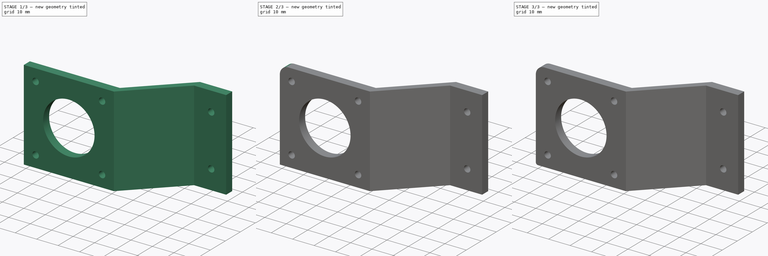
[diagram: build sequence overview — one tinted view per stage of 3, left to right]
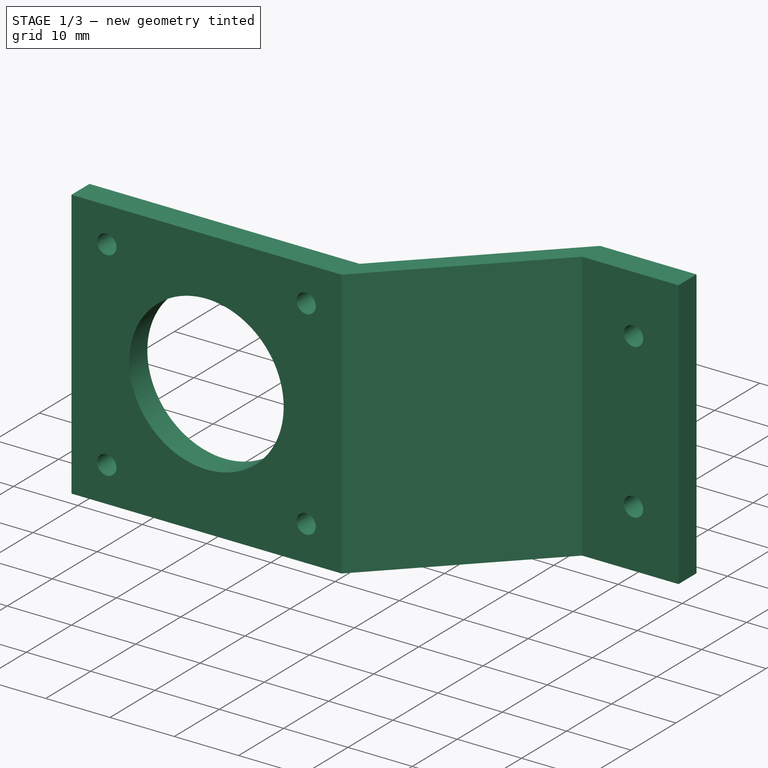
[diagram: stage 1 of 3 — iso view after this stage's code; geometry added in this stage tinted green]
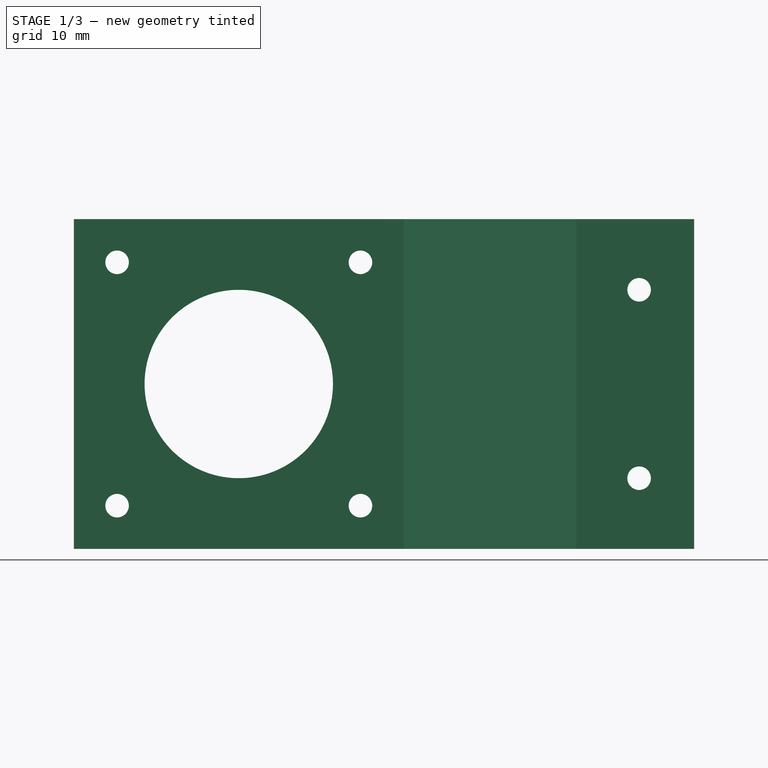
[diagram: stage 1 of 3 — front view after this stage's code; geometry added in this stage tinted green]
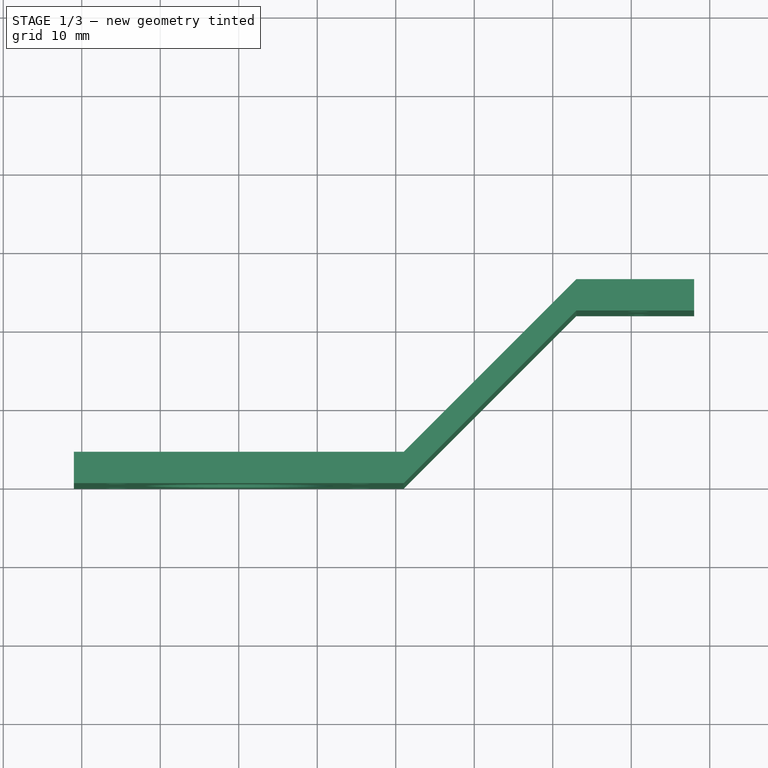
[diagram: stage 1 of 3 — top view after this stage's code; geometry added in this stage tinted green]
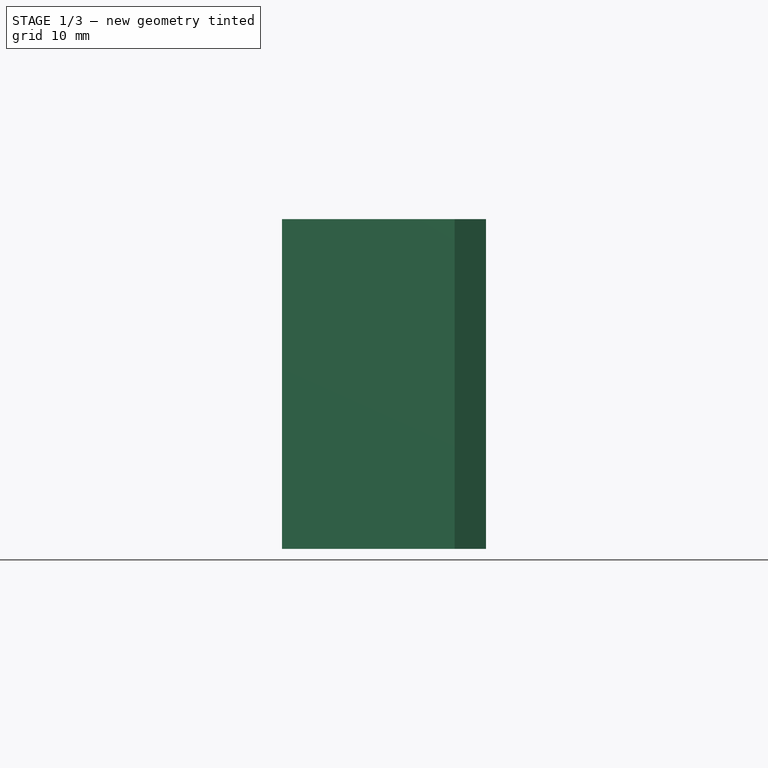
[diagram: stage 1 of 3 — right view after this stage's code; geometry added in this stage tinted green]
FCSTD DOCUMENT  (FreeCAD 0.19R24366 (Git))
Label: Nema Holder for Polargraph
License: All rights reserved
LicenseURL: http://en.wikipedia.org/wiki/All_rights_reserved
objects: PartDesign::Fillet×5, Sketcher::SketchObject×2, PartDesign::Pad×1, PartDesign::Pocket×1, PartDesign::Body×1
note: 17 computed .brp shape members not serialized (recipe doc carries the construction recipe); baked Part::Feature solids carry a one-line shape summary decoded from their .brp

FEATURE [Sketcher::SketchObject] Sketch
  FullyConstrained = true
  MapMode = 5
  Support = -> [XY_Plane]
  sketch-geometry (8):
    g0: LineSegment StartX=-21 StartY=0 StartZ=0 EndX=21 EndY=0 EndZ=0
    g1: LineSegment StartX=21 StartY=0 StartZ=0 EndX=43 EndY=22 EndZ=0
    g2: LineSegment StartX=43 StartY=22 StartZ=0 EndX=58 EndY=22 EndZ=0
    g3: LineSegment StartX=58 StartY=22 StartZ=0 EndX=58 EndY=26 EndZ=0
    g4: LineSegment StartX=58 StartY=26 StartZ=0 EndX=43 EndY=26 EndZ=0
    g5: LineSegment StartX=43 StartY=26 StartZ=0 EndX=21 EndY=4 EndZ=0
    g6: LineSegment StartX=21 StartY=4 StartZ=0 EndX=-21 EndY=4 EndZ=0
    g7: LineSegment StartX=-21 StartY=4 StartZ=0 EndX=-21 EndY=0 EndZ=0
  constraints (23):
    c: Vertical(g7)
    c: Vertical(g3)
    c: Equal(g7,g3)
    c: DistanceY(g7,g7) = 4
    c: Coincident(g6,g7)
    c: Coincident(g0,g7)
    c: Coincident(g4,g3)
    c: Coincident(g2,g3)
    c: Coincident(g2,g1)
    c: Coincident(g5,g4)
    c: Coincident(g5,g6)
    c: Coincident(g0,g1)
    c: Equal(g6,g0)
    c: Parallel(g6,g0)
    c: Symmetric(g0,g0,g-1)
    c: Horizontal(g0)
    c: Angle(g5,g6) = 2.35619
    c: Parallel(g5,g1)
    c: Parallel(g2,g4)
    c: Horizontal(g2)
    c: DistanceX(g2,g2) = 15
    c: DistanceX(g0,g0) = 42
    c: DistanceY(g0,g1) = 22
FEATURE [PartDesign::Pad] Pad
  Direction = (1,1,1)
  Length = 42
  Length2 = 100
  Profile = -> Sketch
  Type = 0
FEATURE [Sketcher::SketchObject] Sketch001
  ExternalGeometry = -> [Pad]
  FullyConstrained = false
  MapMode = 5
  Placement = pos=(0,0,0) rot=(1,0,0;1.5708rad)
  Support = -> [XZ_Plane]
  sketch-geometry (7):
    g0: Circle CenterX=-4e-16 CenterY=21 CenterZ=0 NormalX=0 NormalY=0 NormalZ=1 AngleXU=0 Radius=12
    g1: Circle CenterX=51 CenterY=33 CenterZ=0 NormalX=0 NormalY=0 NormalZ=1 AngleXU=0 Radius=1.5
    g2: Circle CenterX=51 CenterY=9 CenterZ=0 NormalX=0 NormalY=0 NormalZ=1 AngleXU=0 Radius=1.5
    g3: Circle CenterX=-15.5 CenterY=36.5 CenterZ=0 NormalX=0 NormalY=0 NormalZ=1 AngleXU=0 Radius=1.5
    g4: Circle CenterX=15.5 CenterY=36.5 CenterZ=0 NormalX=0 NormalY=0 NormalZ=1 AngleXU=0 Radius=1.5
    g5: Circle CenterX=15.5 CenterY=5.5 CenterZ=0 NormalX=0 NormalY=0 NormalZ=1 AngleXU=0 Radius=1.5
    g6: Circle CenterX=-15.5 CenterY=5.5 CenterZ=0 NormalX=0 NormalY=0 NormalZ=1 AngleXU=0 Radius=1.5
  constraints (17):
    c: Radius(g0) = 12
    c: Radius(g1) = 1.5
    c: DistanceX(g1,g-7) = 7
    c: DistanceY(g1,g-7) = 9
    c: Radius(g2) = 1.5
    c: DistanceX(g-9,g2) = 8
    c: DistanceY(g-8,g2) = 9
    c: Symmetric(g-3,g-5,g0)
    c: Radius(g3) = 1.5
    c: Equal(g4,g3)
    c: Equal(g3,g6)
    c: Equal(g3,g5)
    c: DistanceX(g6,g5) = 31
    c: DistanceY(g5,g4) = 31
    c: DistanceX(g3,g4) = 31
    c: DistanceY(g6,g3) = 31
    c: Symmetric(g3,g5,g0)
FEATURE [PartDesign::Pocket] Pocket
  BaseFeature = -> Pad
  Length = 5
  Length2 = 100
  Profile = -> Sketch001
  Type = 1
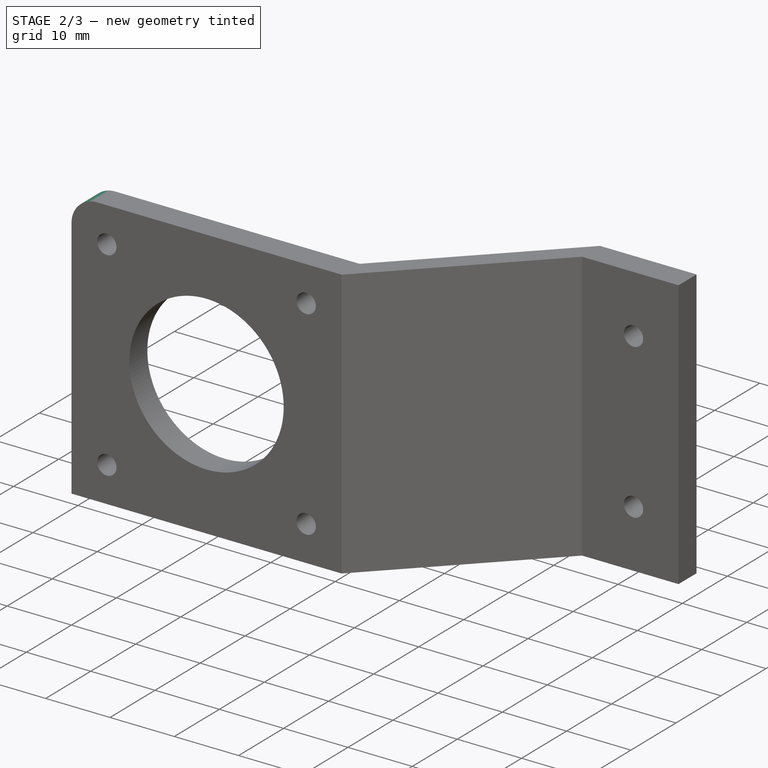
[diagram: stage 2 of 3 — iso view after this stage's code; geometry added in this stage tinted green]
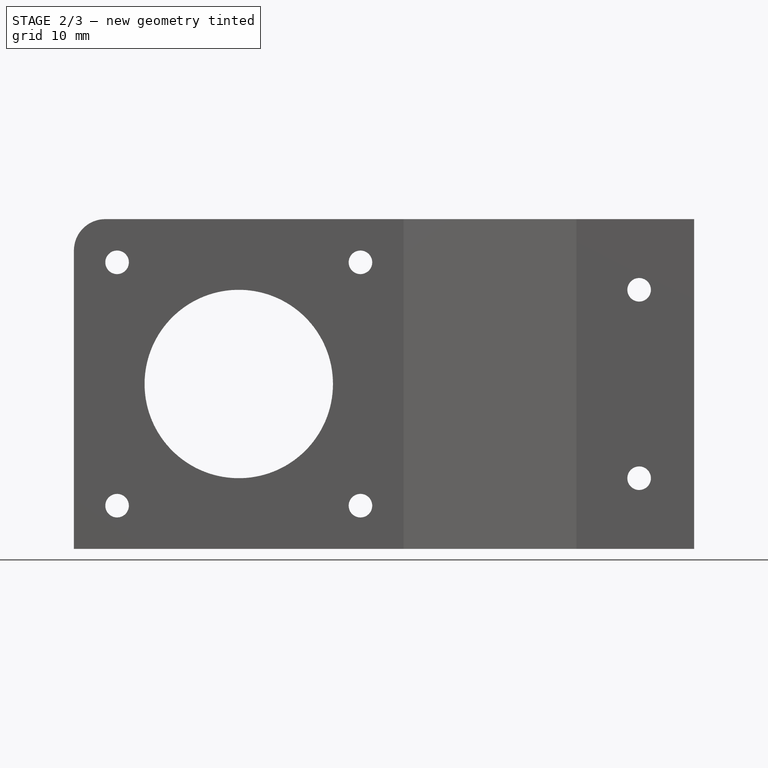
[diagram: stage 2 of 3 — front view after this stage's code; geometry added in this stage tinted green]
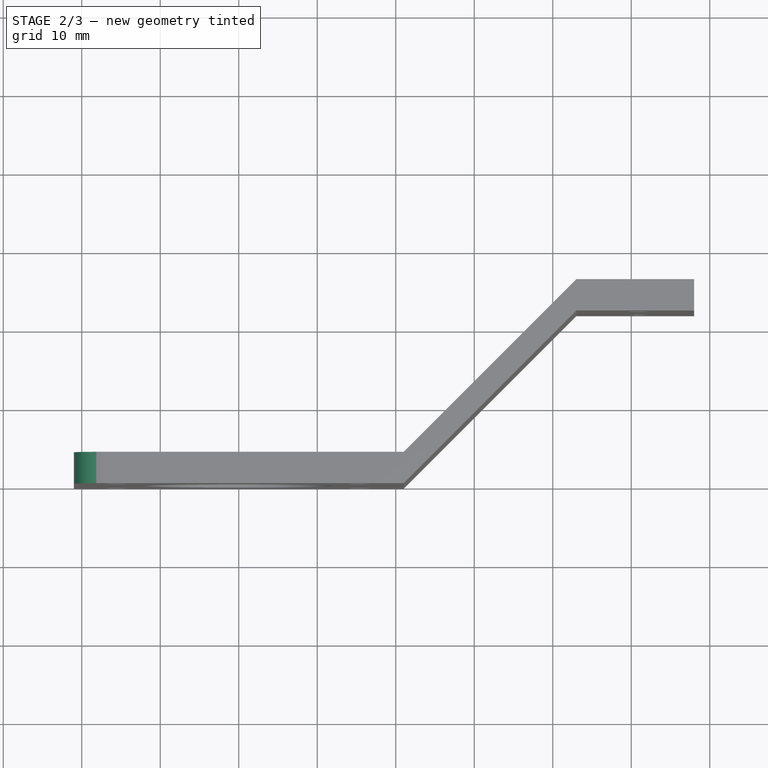
[diagram: stage 2 of 3 — top view after this stage's code; geometry added in this stage tinted green]
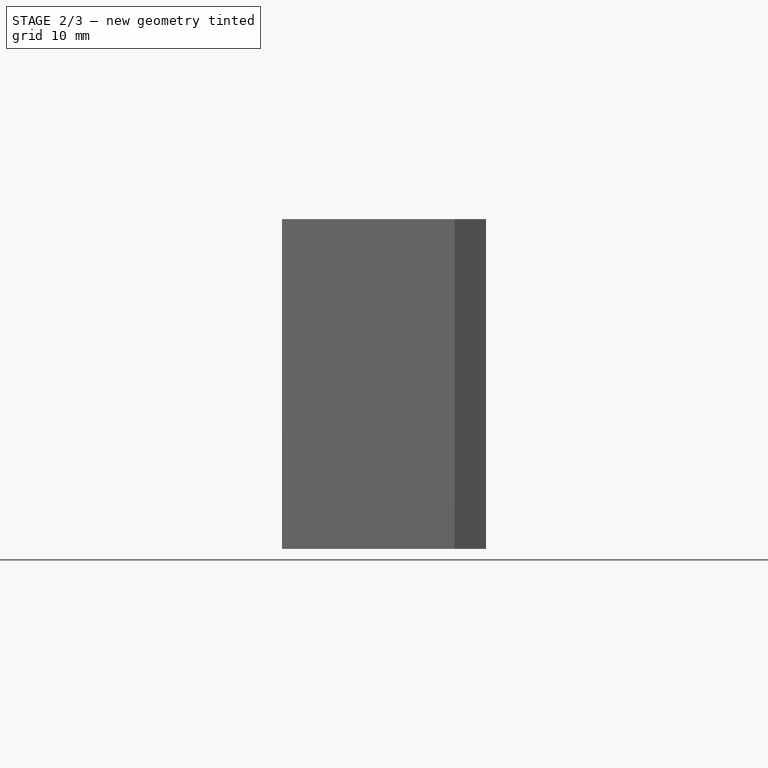
[diagram: stage 2 of 3 — right view after this stage's code; geometry added in this stage tinted green]
FEATURE [PartDesign::Fillet] Fillet
  Base = -> Pocket [Edge12]
  BaseFeature = -> Pocket
  Radius = 4
  SupportTransform = false
FEATURE [PartDesign::Fillet] Fillet001
  Base = -> Fillet [Edge26]
  BaseFeature = -> Fillet
  Radius = 4
  SupportTransform = false
FEATURE [PartDesign::Fillet] Fillet004
  Base = -> Fillet [Edge13]
  BaseFeature = -> Fillet
  Radius = 1
  SupportTransform = false
FEATURE [PartDesign::Body] Body
  Group = -> [Sketch,Pad,Sketch001,Pocket,Fillet,Fillet001,Fillet002,Fillet003,Fillet004]
  Origin = -> Origin
  Tip = -> Fillet004
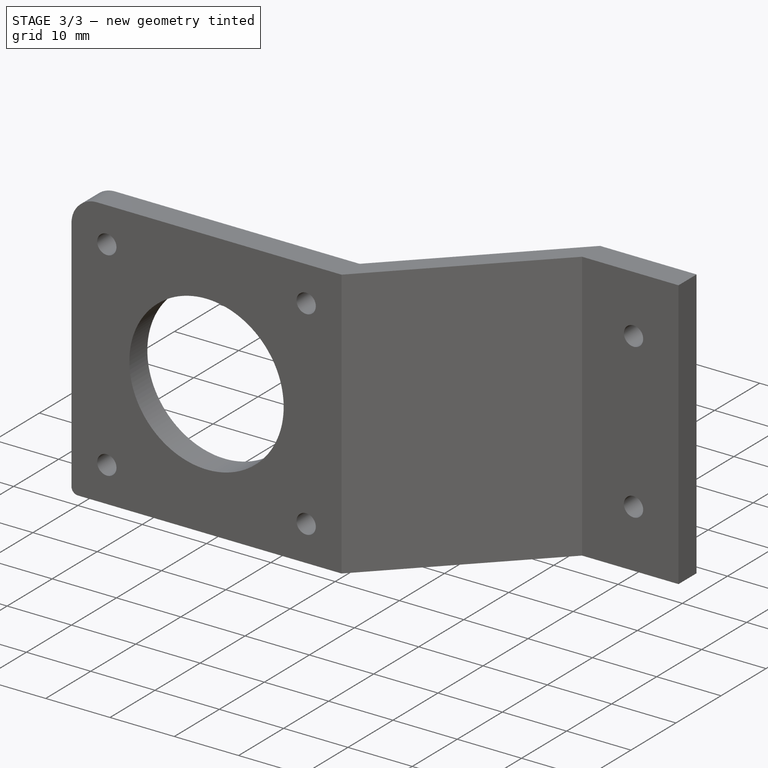
[diagram: stage 3 of 3 — iso view after this stage's code; geometry added in this stage tinted green]
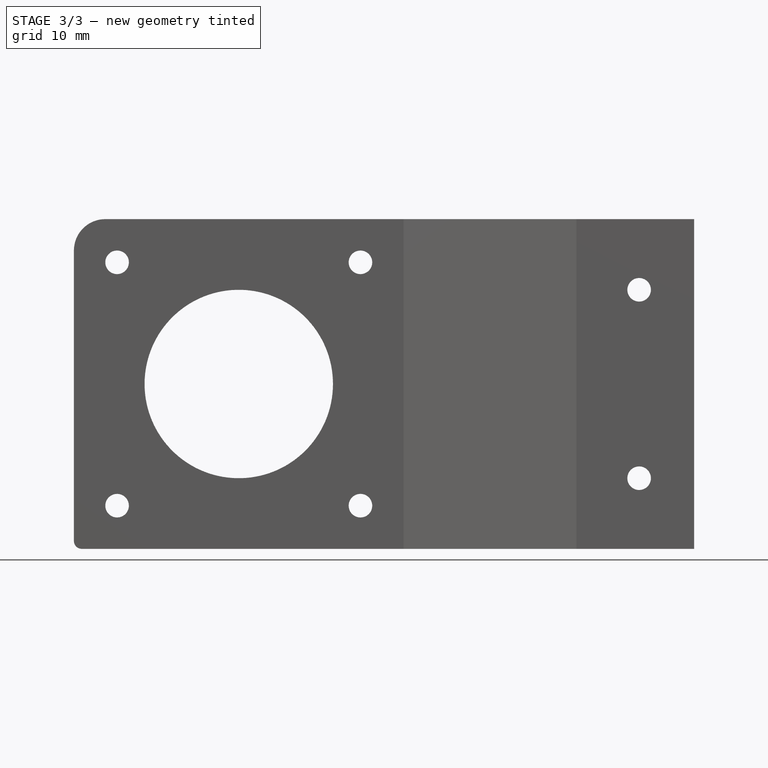
[diagram: stage 3 of 3 — front view after this stage's code; geometry added in this stage tinted green]
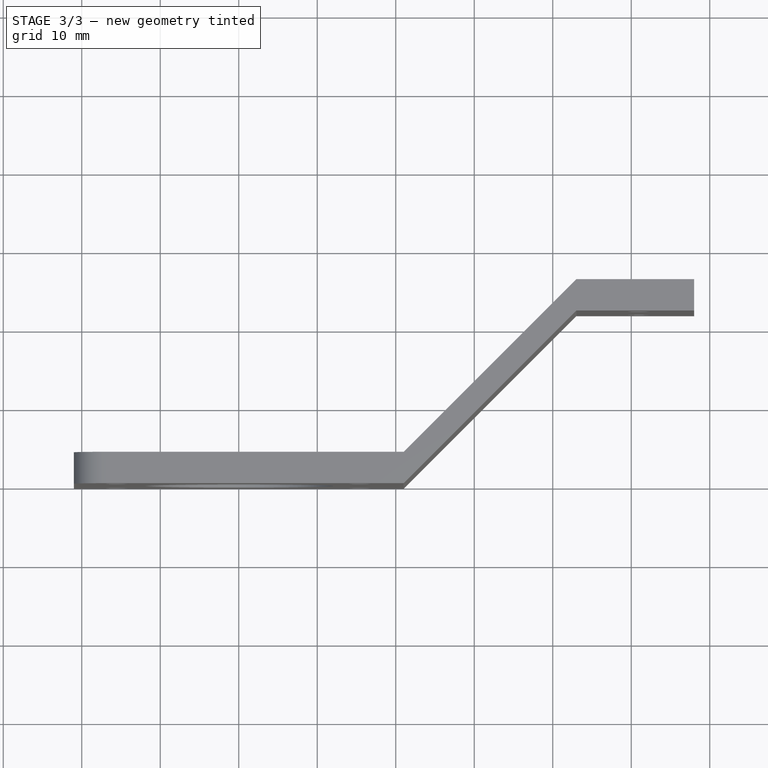
[diagram: stage 3 of 3 — top view after this stage's code; geometry added in this stage tinted green]
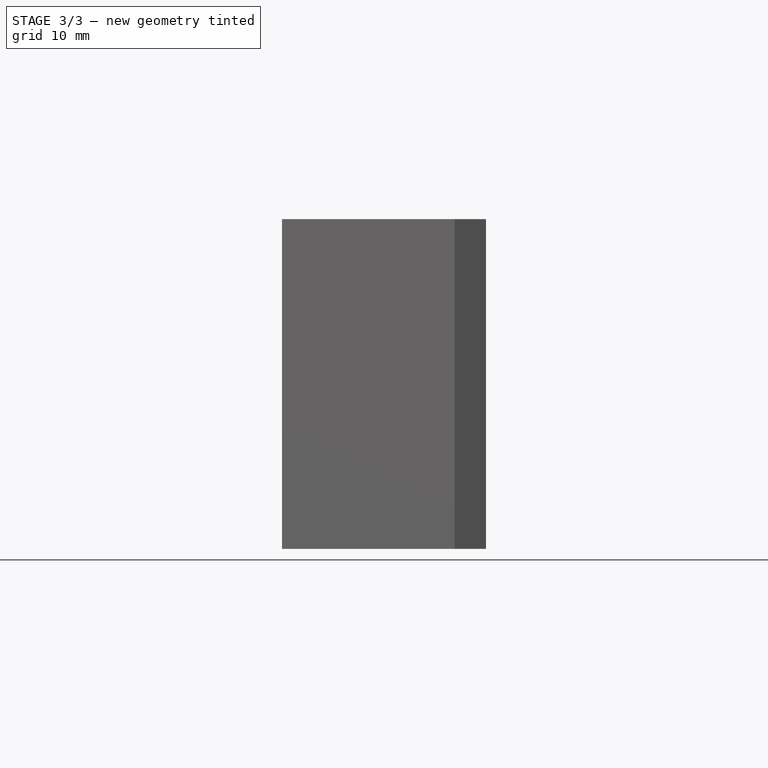
[diagram: stage 3 of 3 — right view after this stage's code; geometry added in this stage tinted green]
FEATURE [PartDesign::Fillet] Fillet002
  Base = -> Fillet001 [Edge43]
  BaseFeature = -> Fillet001
  Radius = 4
  SupportTransform = false
FEATURE [PartDesign::Fillet] Fillet003
  Base = -> Fillet002 [Edge20]
  BaseFeature = -> Fillet002
  Radius = 4
  SupportTransform = false
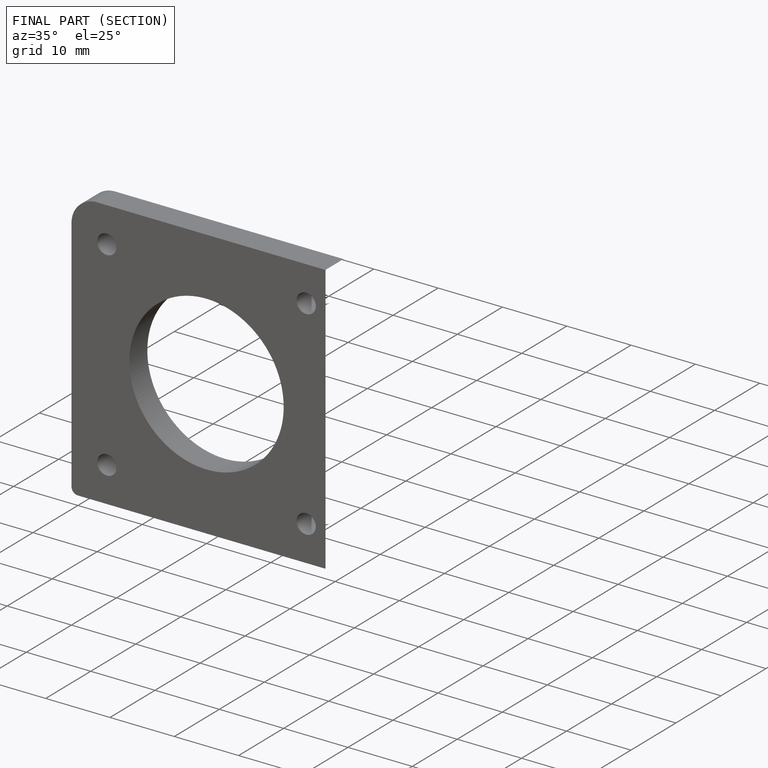
[diagram: finished part — half-section view (interior)]
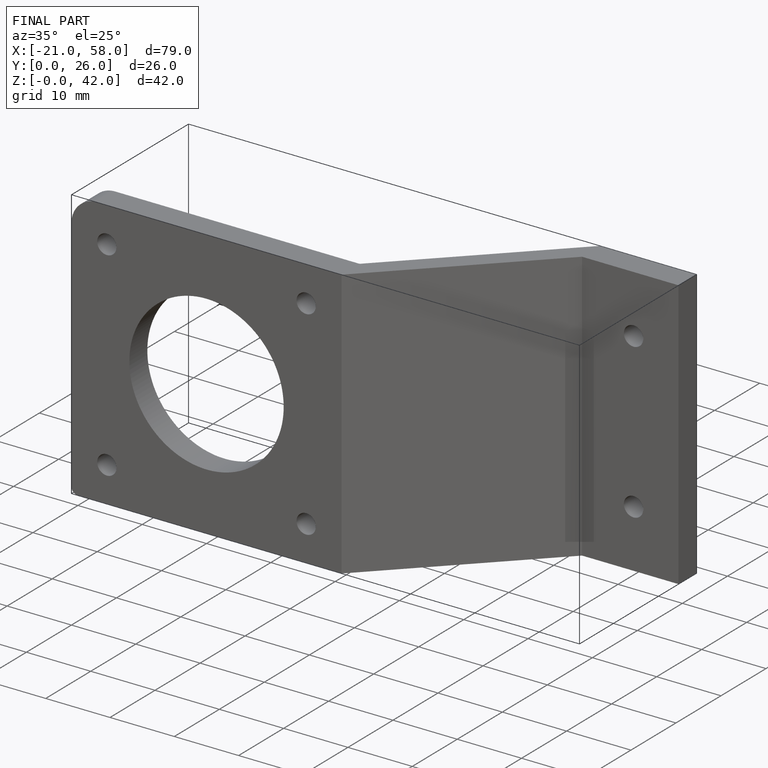
[diagram: finished part — iso view with bounding-box wireframe]
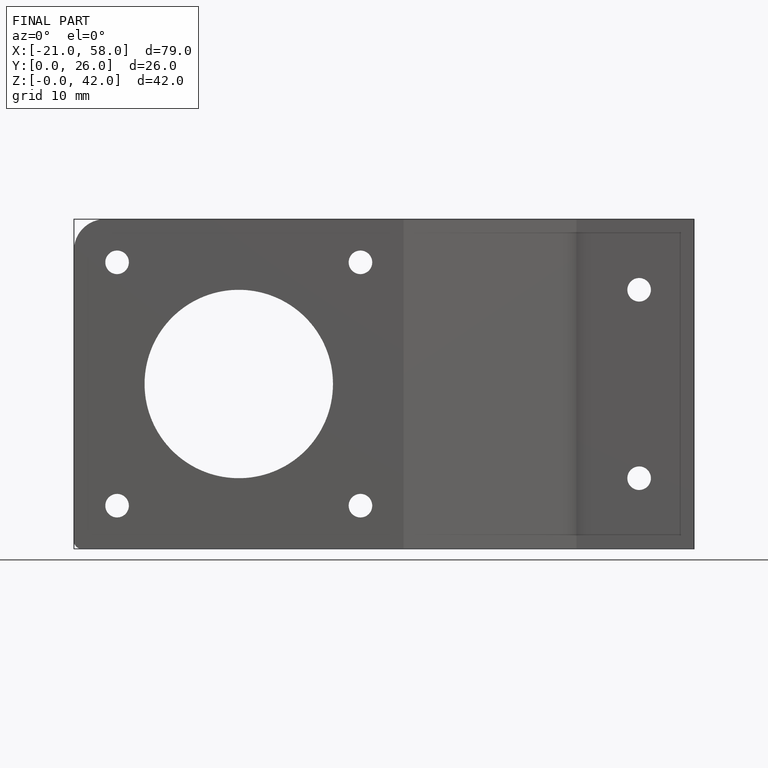
[diagram: finished part — front view with bounding-box wireframe]
